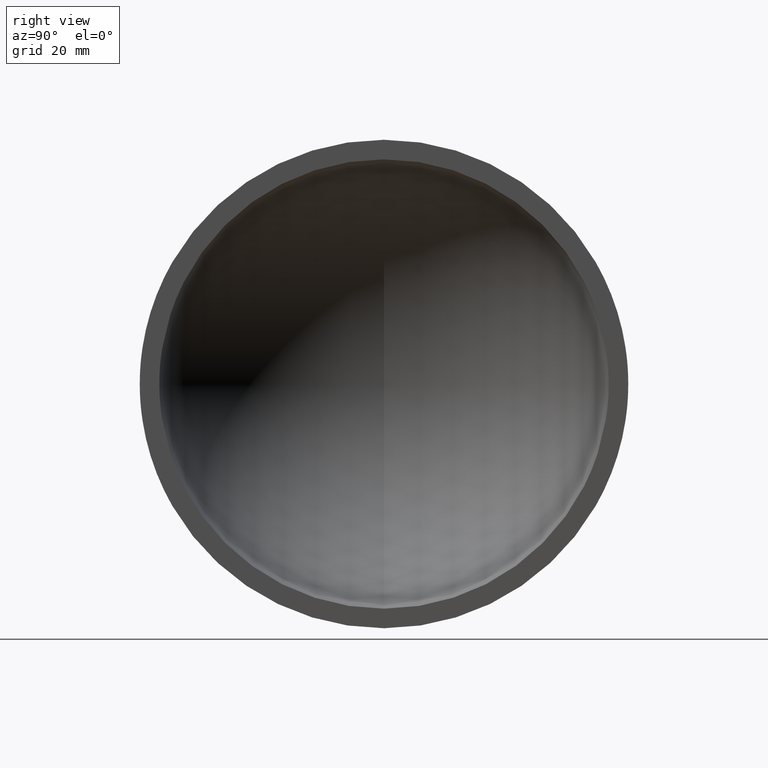
[diagram: clean part render]
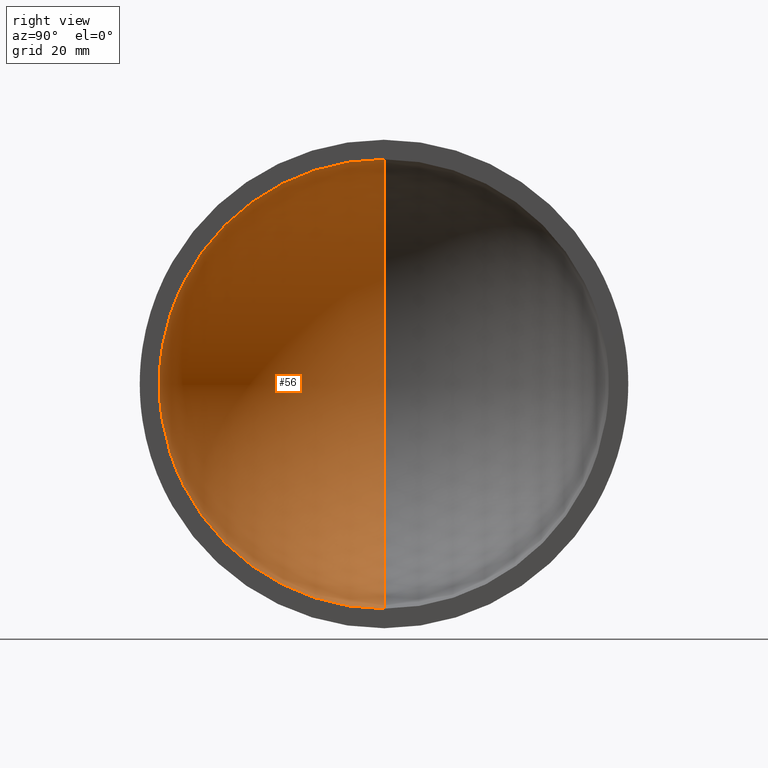
[diagram: same view with one face highlighted and labeled with its STEP entity id]
A machine part, right view. The second image highlights one B-rep face of the part: STEP entity #56.
In plain terms, the highlighted spherical surface has radius 46 mm.
Its self-contained STEP definition (entity closure, byte-faithful):
#4 = ORIENTED_EDGE ( 'NONE', *, *, #94, .T. ) ;
#6 = CARTESIAN_POINT ( 'NONE',  ( -0.9999999999999933400, -5.632043980944954400E-015, -45.98912915026767900 ) ) ;
#14 = CARTESIAN_POINT ( 'NONE',  ( -0.9999999999999933400, 0.0000000000000000000, 45.98912915026767900 ) ) ;
#16 = DIRECTION ( 'NONE',  ( 0.0000000000000000000, 0.0000000000000000000, 1.000000000000000000 ) ) ;
#17 = CIRCLE ( 'NONE', #158, 46.00000000000000000 ) ;
#22 = AXIS2_PLACEMENT_3D ( 'NONE', #33, #99, #23 ) ;
#23 = DIRECTION ( 'NONE',  ( 0.0000000000000000000, 0.0000000000000000000, -1.000000000000000000 ) ) ;
#28 = VERTEX_POINT ( 'NONE', #14 ) ;
#33 = CARTESIAN_POINT ( 'NONE',  ( -0.9999999999999933400, 0.0000000000000000000, 0.0000000000000000000 ) ) ;
#34 = DIRECTION ( 'NONE',  ( 0.0000000000000000000, 0.0000000000000000000, 1.000000000000000000 ) ) ;
#51 = DIRECTION ( 'NONE',  ( 0.0000000000000000000, -1.000000000000000000, 0.0000000000000000000 ) ) ;
#56 = ADVANCED_FACE ( 'NONE', ( #100 ), #167, .F. ) ;
#58 = DIRECTION ( 'NONE',  ( 0.0000000000000000000, -1.000000000000000000, 1.224646799147353200E-016 ) ) ;
#59 = DIRECTION ( 'NONE',  ( 0.0000000000000000000, 1.000000000000000000, 0.0000000000000000000 ) ) ;
#69 = CIRCLE ( 'NONE', #22, 45.98912915026767900 ) ;
#73 = CARTESIAN_POINT ( 'NONE',  ( 0.0000000000000000000, 0.0000000000000000000, 0.0000000000000000000 ) ) ;
#86 = ORIENTED_EDGE ( 'NONE', *, *, #112, .T. ) ;
#93 = CIRCLE ( 'NONE', #121, 46.00000000000000000 ) ;
#94 = EDGE_CURVE ( 'NONE', #28, #159, #69, .T. ) ;
#99 = DIRECTION ( 'NONE',  ( 1.000000000000000000, -0.0000000000000000000, -0.0000000000000000000 ) ) ;
#100 = FACE_OUTER_BOUND ( 'NONE', #109, .T. ) ;
#109 = EDGE_LOOP ( 'NONE', ( #141, #86, #4 ) ) ;
#112 = EDGE_CURVE ( 'NONE', #172, #28, #93, .T. ) ;
#118 = AXIS2_PLACEMENT_3D ( 'NONE', #138, #51, #16 ) ;
#121 = AXIS2_PLACEMENT_3D ( 'NONE', #171, #59, #34 ) ;
#134 = DIRECTION ( 'NONE',  ( 0.0000000000000000000, -1.224646799147353200E-016, -1.000000000000000000 ) ) ;
#138 = CARTESIAN_POINT ( 'NONE',  ( 0.0000000000000000000, 0.0000000000000000000, 0.0000000000000000000 ) ) ;
#141 = ORIENTED_EDGE ( 'NONE', *, *, #146, .F. ) ;
#146 = EDGE_CURVE ( 'NONE', #172, #159, #17, .T. ) ;
#158 = AXIS2_PLACEMENT_3D ( 'NONE', #73, #58, #134 ) ;
#159 = VERTEX_POINT ( 'NONE', #6 ) ;
#164 = CARTESIAN_POINT ( 'NONE',  ( -46.00000000000000000, 0.0000000000000000000, 2.816687638038912400E-015 ) ) ;
#167 = SPHERICAL_SURFACE ( 'NONE', #118, 46.00000000000000000 ) ;
#171 = CARTESIAN_POINT ( 'NONE',  ( 0.0000000000000000000, 0.0000000000000000000, 0.0000000000000000000 ) ) ;
#172 = VERTEX_POINT ( 'NONE', #164 ) ;